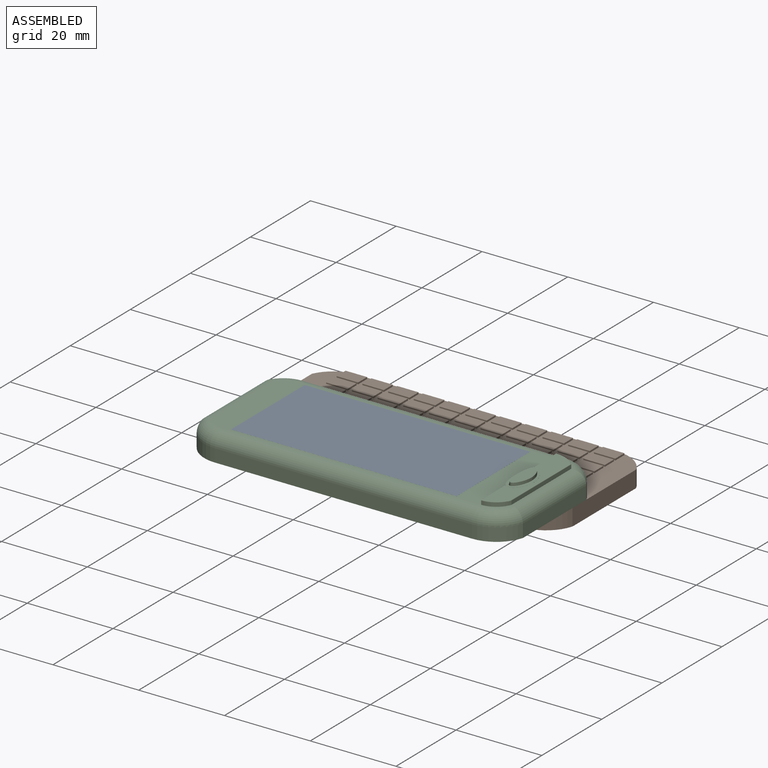
[diagram: assembled view]
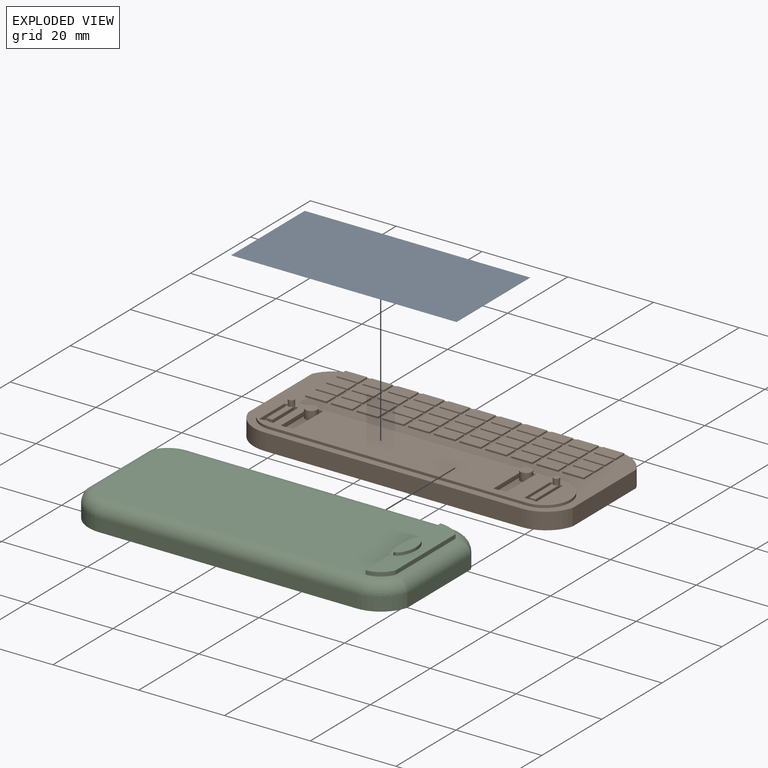
[diagram: exploded view]
GUIDED TOUR — MATED ASSEMBLY (Onshape document b497cf23d350c7b0526f8394, AutoMate assembly b497cf23d350c7b0526f8394_3c18b025ab61cdd5b52f8e9c_d01087976453ecdc4401d373_default)

This assembly has 3 components, labeled P0..P2 below (a component is one placed occurrence of a part; the same part can appear more than once), held together by 2 mates. A mate is a constraint between two components; its type names the relative motion it leaves free:
  FASTENED — locks the two components together rigidly (no relative motion),
  SLIDER — leaves translation along the listed axis free.
Axis/direction vectors are unit vectors and 'through' points are millimeter coordinates, both in the assembly's world frame.

MATES
  1. FASTENED "Fastened 1": P0 <-> P2, direction (0.000, 0.000, -1.000) through (47.79, 38.02, 13.63) mm
  2. SLIDER "Slider 1": P1 <-> P2, axis (0.000, -1.000, 0.000) through (78.46, 51.75, 7.63) mm

ASSEMBLY ORDER
  1. P1 — the base component [order verified]
  2. P2 [order verified]
  3. P0 [order verified]
Order-tag legend:
  [order verified] — this step's position reverses a verified removal order: the component was checked to insert without passing through the ones already placed.

Of the 3 components, 1 carries the full construction recipe — the FeatureScript program that regenerates the part's solid from scratch; the rest are supplied as boundary geometry only.
Each toured component is shown spotlighted twice — in the assembled view, then in the exploded view, where a leader line traces a displaced component back to its assembled socket (saturated green if recipe-attached, orange if geometry-only; every other component desaturated gray) — followed by its recipe or geometry summary and the mates that hold it.
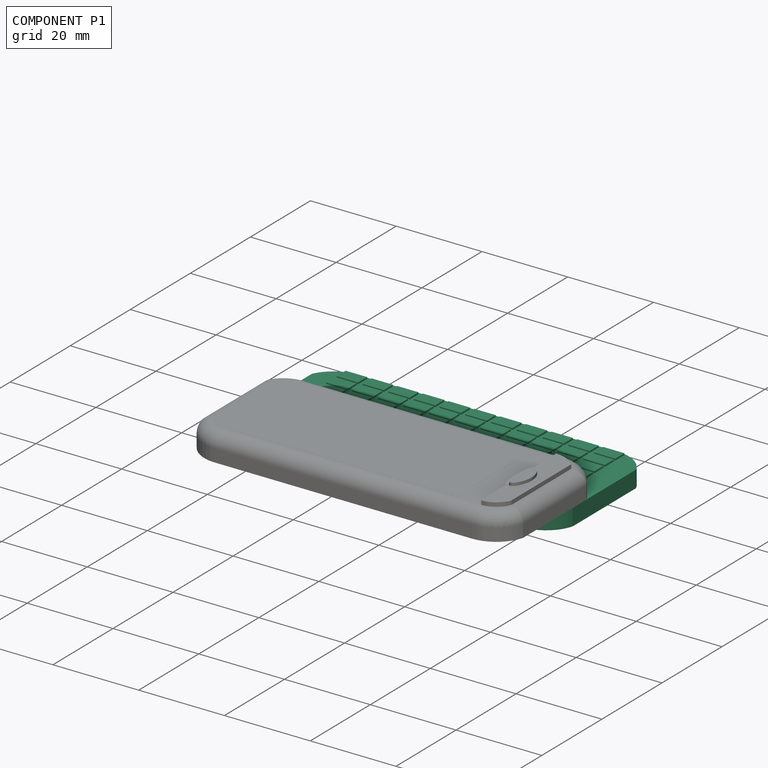
[diagram: component P1 — assembled]
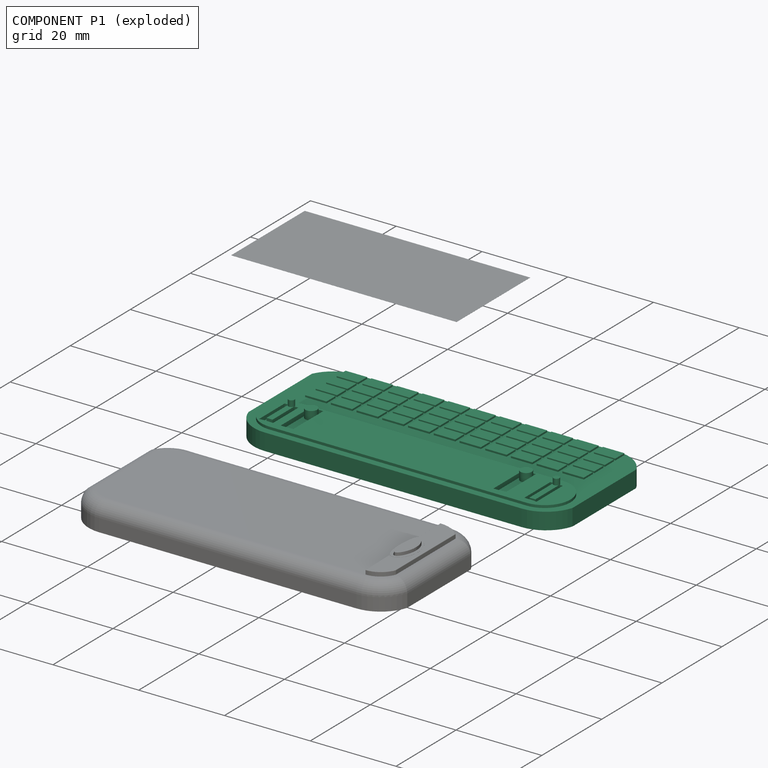
[diagram: component P1 — exploded]
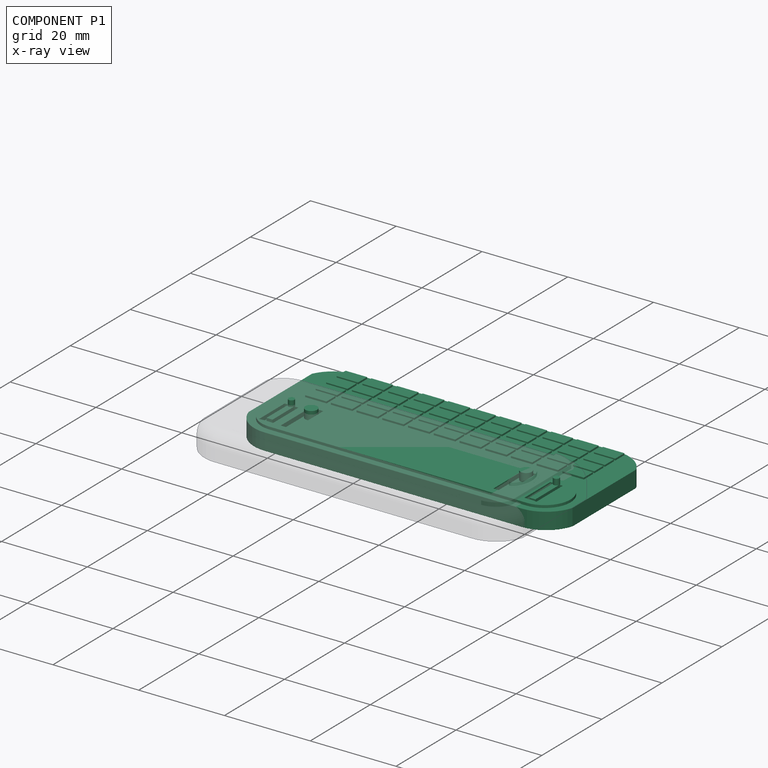
[diagram: component P1 — x-ray view]
COMPONENT P1 — recipe-attached (CADFS 00139531, mesh-verified: the recipe's output STEP matches this component's geometry to below the mesh-comparison resolution (tessellation chordal tolerance ~0.123 mm)).
Held by: SLIDER mate "Slider 1" to P2.
Construction recipe (FeatureScript — the CAD program that rebuilds this solid; sketch coordinates are in the units given by the * unit suffixes, e.g. mm):

FeatureScript 1540;
import(path : "onshape/std/geometry.fs", version : "1540.0");
import(path : "onshape/std/common.fs", version : "1540.0");
const mm = millimeter;
const VERTEX = EntityType.VERTEX;
const EDGE = EntityType.EDGE;
const FACE = EntityType.FACE;
const BODY = EntityType.BODY;
function v(x, y){return vector(x, y);}
function OD(order){return orderDisambiguation(order);}
function OSD(set){return originalSetDisambiguation(set);}
function TD(topology){return topologyDisambiguation(topology);}
function TDD(query){return trueDependencyDisambiguation(query);}
function sQuery(a, b, c) {return sketchEntityQuery(a, b, c);}

annotation { "Feature Type Name" : "Feature", "Feature Type Description" : "" }
export const myFeature = defineFeature(function(context is Context, id is Id, definition is map)
    precondition{}
    {
        {
            var Q0;
            Q0=qCreatedBy(makeId("Top.planeOp"),FACE);
            var sketch = newSketch(context, id + "F0", { "sketchPlane" : qUnion([Q0])});
            skLineSegment(sketch, "E0.bottom", {"start": v(-50.5, 31.94) * mm, "end": v(9.5, 31.94) * mm});
            skLineSegment(sketch, "E0.top", {"start": v(-49.93, 0.43) * mm, "end": v(10.07, 0.43) * mm});
            skArc(sketch, "E1", {"start": v(-50.5, 31.94) * mm, "mid": v(-55.35, 30.33) * mm, "end": v(-58.27, 26.14) * mm});
            skArc(sketch, "E2", {"start": v(-58.27, 5) * mm, "mid": v(-54.84, 1.37) * mm, "end": v(-49.93, 0.43) * mm});
            skLineSegment(sketch, "E3", {"start": v(-58.27, 26.14) * mm, "end": v(-58.27, 5) * mm});
            skArc(sketch, "E4.MirrorCS", {"start": v(9.5, 31.94) * mm, "mid": v(14.36, 30.33) * mm, "end": v(17.3, 26.14) * mm});
            skArc(sketch, "E5.MirrorCS", {"start": v(17.3, 5) * mm, "mid": v(13.86, 1.37) * mm, "end": v(8.95, 0.43) * mm});
            skLineSegment(sketch, "E6", {"start": v(17.3, 26.14) * mm, "end": v(17.3, 5) * mm});
            skSolve(sketch);
        }
        {
            var Q0;
            Q0 = qSketchRegion(id + "F0", true);
            var Q1;
            Q1 = qConstructionFilter(qBodyType(qCreatedBy(id + "F0" ,EDGE), BodyType.WIRE), ConstructionObject.NO);
            extrude(context, id + "F1", {"entities" : qUnion([Q0]), "surfaceEntities" : qUnion([Q1]), "depth" : 3.9 * mm});
        }
        {
            var Q0;
            Q0=makeQuery(id+"F1.opExtrude","CAP_FACE",FACE,{"disambiguationData":[OSD([sQuery(id+"F0.wireOp",EDGE,"E0.bottom"),sQuery(id+"F0.wireOp",EDGE,"E0.top"),sQuery(id+"F0.wireOp",EDGE,"E1"),sQuery(id+"F0.wireOp",EDGE,"E2"),sQuery(id+"F0.wireOp",EDGE,"E3"),sQuery(id+"F0.wireOp",EDGE,"E4.MirrorCS"),sQuery(id+"F0.wireOp",EDGE,"E5.MirrorCS"),sQuery(id+"F0.wireOp",EDGE,"E6")])],"isStart":false});
            var sketch = newSketch(context, id + "F2", { "sketchPlane" : qUnion([Q0])});
            skLineSegment(sketch, "E7.bottom", {"start": v(-47.67, 11.39) * mm, "end": v(-52.67, 11.39) * mm});
            skLineSegment(sketch, "E7.top", {"start": v(-47.67, 14.39) * mm, "end": v(-52.67, 14.39) * mm});
            skLineSegment(sketch, "E7.left", {"start": v(-47.67, 11.39) * mm, "end": v(-47.67, 14.39) * mm});
            skLineSegment(sketch, "E7.right", {"start": v(-52.67, 11.39) * mm, "end": v(-52.67, 14.39) * mm});
            skPoint(sketch, "E7.middle", {"position": v(-50.17, 12.89) * mm});
            skLineSegment(sketch, "E8.0.1.0", {"start": v(-47.67, 10.89) * mm, "end": v(-52.67, 10.89) * mm});
            skLineSegment(sketch, "E8.0.1.1", {"start": v(-52.67, 7.89) * mm, "end": v(-52.67, 10.89) * mm});
            skLineSegment(sketch, "E8.0.1.2", {"start": v(-47.67, 7.89) * mm, "end": v(-52.67, 7.89) * mm});
            skLineSegment(sketch, "E8.0.1.3", {"start": v(-47.67, 7.89) * mm, "end": v(-47.67, 10.89) * mm});
            skLineSegment(sketch, "E8.0.2.0", {"start": v(-47.67, 7.39) * mm, "end": v(-52.67, 7.39) * mm});
            skLineSegment(sketch, "E8.0.2.1", {"start": v(-52.67, 4.39) * mm, "end": v(-52.67, 7.39) * mm});
            skLineSegment(sketch, "E8.0.2.2", {"start": v(-47.67, 4.39) * mm, "end": v(-52.67, 4.39) * mm});
            skLineSegment(sketch, "E8.0.2.3", {"start": v(-47.67, 4.39) * mm, "end": v(-47.67, 7.39) * mm});
            skLineSegment(sketch, "E8.0.3.0", {"start": v(-47.67, 3.89) * mm, "end": v(-52.67, 3.89) * mm});
            skLineSegment(sketch, "E8.0.3.1", {"start": v(-52.67, 0.89) * mm, "end": v(-52.67, 3.89) * mm});
            skLineSegment(sketch, "E8.0.3.2", {"start": v(-47.67, 0.89) * mm, "end": v(-52.67, 0.89) * mm});
            skLineSegment(sketch, "E8.0.3.3", {"start": v(-47.67, 0.89) * mm, "end": v(-47.67, 3.89) * mm});
            skLineSegment(sketch, "E8.1.0.0", {"start": v(-41.67, 14.39) * mm, "end": v(-46.67, 14.39) * mm});
            skLineSegment(sketch, "E8.1.0.1", {"start": v(-46.67, 11.39) * mm, "end": v(-46.67, 14.39) * mm});
            skLineSegment(sketch, "E8.1.0.2", {"start": v(-41.67, 11.39) * mm, "end": v(-46.67, 11.39) * mm});
            skLineSegment(sketch, "E8.1.0.3", {"start": v(-41.67, 11.39) * mm, "end": v(-41.67, 14.39) * mm});
            skLineSegment(sketch, "E8.1.1.0", {"start": v(-41.67, 10.89) * mm, "end": v(-46.67, 10.89) * mm});
            skLineSegment(sketch, "E8.1.1.1", {"start": v(-46.67, 7.89) * mm, "end": v(-46.67, 10.89) * mm});
            skLineSegment(sketch, "E8.1.1.2", {"start": v(-41.67, 7.89) * mm, "end": v(-46.67, 7.89) * mm});
            skLineSegment(sketch, "E8.1.1.3", {"start": v(-41.67, 7.89) * mm, "end": v(-41.67, 10.89) * mm});
            skLineSegment(sketch, "E8.1.2.0", {"start": v(-41.67, 7.39) * mm, "end": v(-46.67, 7.39) * mm});
            skLineSegment(sketch, "E8.1.2.1", {"start": v(-46.67, 4.39) * mm, "end": v(-46.67, 7.39) * mm});
            skLineSegment(sketch, "E8.1.2.2", {"start": v(-41.67, 4.39) * mm, "end": v(-46.67, 4.39) * mm});
            skLineSegment(sketch, "E8.1.2.3", {"start": v(-41.67, 4.39) * mm, "end": v(-41.67, 7.39) * mm});
            skLineSegment(sketch, "E8.1.3.0", {"start": v(-41.67, 3.89) * mm, "end": v(-46.67, 3.89) * mm});
            skLineSegment(sketch, "E8.1.3.1", {"start": v(-46.67, 0.89) * mm, "end": v(-46.67, 3.89) * mm});
            skLineSegment(sketch, "E8.1.3.2", {"start": v(-41.67, 0.89) * mm, "end": v(-46.67, 0.89) * mm});
            skLineSegment(sketch, "E8.1.3.3", {"start": v(-41.67, 0.89) * mm, "end": v(-41.67, 3.89) * mm});
            skLineSegment(sketch, "E8.2.0.0", {"start": v(-35.67, 14.39) * mm, "end": v(-40.67, 14.39) * mm});
            skLineSegment(sketch, "E8.2.0.1", {"start": v(-40.67, 11.39) * mm, "end": v(-40.67, 14.39) * mm});
            skLineSegment(sketch, "E8.2.0.2", {"start": v(-35.67, 11.39) * mm, "end": v(-40.67, 11.39) * mm});
            skLineSegment(sketch, "E8.2.0.3", {"start": v(-35.67, 11.39) * mm, "end": v(-35.67, 14.39) * mm});
            skLineSegment(sketch, "E8.2.1.0", {"start": v(-35.67, 10.89) * mm, "end": v(-40.67, 10.89) * mm});
            skLineSegment(sketch, "E8.2.1.1", {"start": v(-40.67, 7.89) * mm, "end": v(-40.67, 10.89) * mm});
            skLineSegment(sketch, "E8.2.1.2", {"start": v(-35.67, 7.89) * mm, "end": v(-40.67, 7.89) * mm});
            skLineSegment(sketch, "E8.2.1.3", {"start": v(-35.67, 7.89) * mm, "end": v(-35.67, 10.89) * mm});
            skLineSegment(sketch, "E8.2.2.0", {"start": v(-35.67, 7.39) * mm, "end": v(-40.67, 7.39) * mm});
            skLineSegment(sketch, "E8.2.2.1", {"start": v(-40.67, 4.39) * mm, "end": v(-40.67, 7.39) * mm});
            skLineSegment(sketch, "E8.2.2.2", {"start": v(-35.67, 4.39) * mm, "end": v(-40.67, 4.39) * mm});
            skLineSegment(sketch, "E8.2.2.3", {"start": v(-35.67, 4.39) * mm, "end": v(-35.67, 7.39) * mm});
            skLineSegment(sketch, "E8.2.3.0", {"start": v(-35.67, 3.89) * mm, "end": v(-40.67, 3.89) * mm});
            skLineSegment(sketch, "E8.2.3.1", {"start": v(-40.67, 0.89) * mm, "end": v(-40.67, 3.89) * mm});
            skLineSegment(sketch, "E8.2.3.2", {"start": v(-35.67, 0.89) * mm, "end": v(-40.67, 0.89) * mm});
            skLineSegment(sketch, "E8.2.3.3", {"start": v(-35.67, 0.89) * mm, "end": v(-35.67, 3.89) * mm});
            skLineSegment(sketch, "E8.3.0.0", {"start": v(-29.67, 14.39) * mm, "end": v(-34.67, 14.39) * mm});
            skLineSegment(sketch, "E8.3.0.1", {"start": v(-34.67, 11.39) * mm, "end": v(-34.67, 14.39) * mm});
            skLineSegment(sketch, "E8.3.0.2", {"start": v(-29.67, 11.39) * mm, "end": v(-34.67, 11.39) * mm});
            skLineSegment(sketch, "E8.3.0.3", {"start": v(-29.67, 11.39) * mm, "end": v(-29.67, 14.39) * mm});
            skLineSegment(sketch, "E8.3.1.0", {"start": v(-29.67, 10.89) * mm, "end": v(-34.67, 10.89) * mm});
            skLineSegment(sketch, "E8.3.1.1", {"start": v(-34.67, 7.89) * mm, "end": v(-34.67, 10.89) * mm});
            skLineSegment(sketch, "E8.3.1.2", {"start": v(-29.67, 7.89) * mm, "end": v(-34.67, 7.89) * mm});
            skLineSegment(sketch, "E8.3.1.3", {"start": v(-29.67, 7.89) * mm, "end": v(-29.67, 10.89) * mm});
            skLineSegment(sketch, "E8.3.2.0", {"start": v(-29.67, 7.39) * mm, "end": v(-34.67, 7.39) * mm});
            skLineSegment(sketch, "E8.3.2.1", {"start": v(-34.67, 4.39) * mm, "end": v(-34.67, 7.39) * mm});
            skLineSegment(sketch, "E8.3.2.2", {"start": v(-29.67, 4.39) * mm, "end": v(-34.67, 4.39) * mm});
            skLineSegment(sketch, "E8.3.2.3", {"start": v(-29.67, 4.39) * mm, "end": v(-29.67, 7.39) * mm});
            skLineSegment(sketch, "E8.3.3.0", {"start": v(-29.67, 3.89) * mm, "end": v(-34.67, 3.89) * mm});
            skLineSegment(sketch, "E8.3.3.1", {"start": v(-34.67, 0.89) * mm, "end": v(-34.67, 3.89) * mm});
            skLineSegment(sketch, "E8.3.3.2", {"start": v(-29.67, 0.89) * mm, "end": v(-34.67, 0.89) * mm});
            skLineSegment(sketch, "E8.3.3.3", {"start": v(-29.67, 0.89) * mm, "end": v(-29.67, 3.89) * mm});
            skLineSegment(sketch, "E8.4.0.0", {"start": v(-23.67, 14.39) * mm, "end": v(-28.67, 14.39) * mm});
            skLineSegment(sketch, "E8.4.0.1", {"start": v(-28.67, 11.39) * mm, "end": v(-28.67, 14.39) * mm});
            skLineSegment(sketch, "E8.4.0.2", {"start": v(-23.67, 11.39) * mm, "end": v(-28.67, 11.39) * mm});
            skLineSegment(sketch, "E8.4.0.3", {"start": v(-23.67, 11.39) * mm, "end": v(-23.67, 14.39) * mm});
            skLineSegment(sketch, "E8.4.1.0", {"start": v(-23.67, 10.89) * mm, "end": v(-28.67, 10.89) * mm});
            skLineSegment(sketch, "E8.4.1.1", {"start": v(-28.67, 7.89) * mm, "end": v(-28.67, 10.89) * mm});
            skLineSegment(sketch, "E8.4.1.2", {"start": v(-23.67, 7.89) * mm, "end": v(-28.67, 7.89) * mm});
            skLineSegment(sketch, "E8.4.1.3", {"start": v(-23.67, 7.89) * mm, "end": v(-23.67, 10.89) * mm});
            skLineSegment(sketch, "E8.4.2.0", {"start": v(-23.67, 7.39) * mm, "end": v(-28.67, 7.39) * mm});
            skLineSegment(sketch, "E8.4.2.1", {"start": v(-28.67, 4.39) * mm, "end": v(-28.67, 7.39) * mm});
            skLineSegment(sketch, "E8.4.2.2", {"start": v(-23.67, 4.39) * mm, "end": v(-28.67, 4.39) * mm});
            skLineSegment(sketch, "E8.4.2.3", {"start": v(-23.67, 4.39) * mm, "end": v(-23.67, 7.39) * mm});
            skLineSegment(sketch, "E8.4.3.0", {"start": v(-23.67, 3.89) * mm, "end": v(-28.67, 3.89) * mm});
            skLineSegment(sketch, "E8.4.3.1", {"start": v(-28.67, 0.89) * mm, "end": v(-28.67, 3.89) * mm});
            skLineSegment(sketch, "E8.4.3.2", {"start": v(-23.67, 0.89) * mm, "end": v(-28.67, 0.89) * mm});
            skLineSegment(sketch, "E8.4.3.3", {"start": v(-23.67, 0.89) * mm, "end": v(-23.67, 3.89) * mm});
            skLineSegment(sketch, "E8.5.0.0", {"start": v(-17.67, 14.39) * mm, "end": v(-22.67, 14.39) * mm});
            skLineSegment(sketch, "E8.5.0.1", {"start": v(-22.67, 11.39) * mm, "end": v(-22.67, 14.39) * mm});
            skLineSegment(sketch, "E8.5.0.2", {"start": v(-17.67, 11.39) * mm, "end": v(-22.67, 11.39) * mm});
            skLineSegment(sketch, "E8.5.0.3", {"start": v(-17.67, 11.39) * mm, "end": v(-17.67, 14.39) * mm});
            skLineSegment(sketch, "E8.5.1.0", {"start": v(-17.67, 10.89) * mm, "end": v(-22.67, 10.89) * mm});
            skLineSegment(sketch, "E8.5.1.1", {"start": v(-22.67, 7.89) * mm, "end": v(-22.67, 10.89) * mm});
            skLineSegment(sketch, "E8.5.1.2", {"start": v(-17.67, 7.89) * mm, "end": v(-22.67, 7.89) * mm});
            skLineSegment(sketch, "E8.5.1.3", {"start": v(-17.67, 7.89) * mm, "end": v(-17.67, 10.89) * mm});
            skLineSegment(sketch, "E8.5.2.0", {"start": v(-17.67, 7.39) * mm, "end": v(-22.67, 7.39) * mm});
            skLineSegment(sketch, "E8.5.2.1", {"start": v(-22.67, 4.39) * mm, "end": v(-22.67, 7.39) * mm});
            skLineSegment(sketch, "E8.5.2.2", {"start": v(-17.67, 4.39) * mm, "end": v(-22.67, 4.39) * mm});
            skLineSegment(sketch, "E8.5.2.3", {"start": v(-17.67, 4.39) * mm, "end": v(-17.67, 7.39) * mm});
            skLineSegment(sketch, "E8.5.3.0", {"start": v(-17.67, 3.89) * mm, "end": v(-22.67, 3.89) * mm});
            skLineSegment(sketch, "E8.5.3.1", {"start": v(-22.67, 0.89) * mm, "end": v(-22.67, 3.89) * mm});
            skLineSegment(sketch, "E8.5.3.2", {"start": v(-17.67, 0.89) * mm, "end": v(-22.67, 0.89) * mm});
            skLineSegment(sketch, "E8.5.3.3", {"start": v(-17.67, 0.89) * mm, "end": v(-17.67, 3.89) * mm});
            skLineSegment(sketch, "E8.6.0.0", {"start": v(-11.67, 14.39) * mm, "end": v(-16.67, 14.39) * mm});
            skLineSegment(sketch, "E8.6.0.1", {"start": v(-16.67, 11.39) * mm, "end": v(-16.67, 14.39) * mm});
            skLineSegment(sketch, "E8.6.0.2", {"start": v(-11.67, 11.39) * mm, "end": v(-16.67, 11.39) * mm});
            skLineSegment(sketch, "E8.6.0.3", {"start": v(-11.67, 11.39) * mm, "end": v(-11.67, 14.39) * mm});
            skLineSegment(sketch, "E8.6.1.0", {"start": v(-11.67, 10.89) * mm, "end": v(-16.67, 10.89) * mm});
            skLineSegment(sketch, "E8.6.1.1", {"start": v(-16.67, 7.89) * mm, "end": v(-16.67, 10.89) * mm});
            skLineSegment(sketch, "E8.6.1.2", {"start": v(-11.67, 7.89) * mm, "end": v(-16.67, 7.89) * mm});
            skLineSegment(sketch, "E8.6.1.3", {"start": v(-11.67, 7.89) * mm, "end": v(-11.67, 10.89) * mm});
            skLineSegment(sketch, "E8.6.2.0", {"start": v(-11.67, 7.39) * mm, "end": v(-16.67, 7.39) * mm});
            skLineSegment(sketch, "E8.6.2.1", {"start": v(-16.67, 4.39) * mm, "end": v(-16.67, 7.39) * mm});
            skLineSegment(sketch, "E8.6.2.2", {"start": v(-11.67, 4.39) * mm, "end": v(-16.67, 4.39) * mm});
            skLineSegment(sketch, "E8.6.2.3", {"start": v(-11.67, 4.39) * mm, "end": v(-11.67, 7.39) * mm});
            skLineSegment(sketch, "E8.6.3.0", {"start": v(-11.67, 3.89) * mm, "end": v(-16.67, 3.89) * mm});
            skLineSegment(sketch, "E8.6.3.1", {"start": v(-16.67, 0.89) * mm, "end": v(-16.67, 3.89) * mm});
            skLineSegment(sketch, "E8.6.3.2", {"start": v(-11.67, 0.89) * mm, "end": v(-16.67, 0.89) * mm});
            skLineSegment(sketch, "E8.6.3.3", {"start": v(-11.67, 0.89) * mm, "end": v(-11.67, 3.89) * mm});
            skLineSegment(sketch, "E8.7.0.0", {"start": v(-5.67, 14.39) * mm, "end": v(-10.67, 14.39) * mm});
            skLineSegment(sketch, "E8.7.0.1", {"start": v(-10.67, 11.39) * mm, "end": v(-10.67, 14.39) * mm});
            skLineSegment(sketch, "E8.7.0.2", {"start": v(-5.67, 11.39) * mm, "end": v(-10.67, 11.39) * mm});
            skLineSegment(sketch, "E8.7.0.3", {"start": v(-5.67, 11.39) * mm, "end": v(-5.67, 14.39) * mm});
            skLineSegment(sketch, "E8.7.1.0", {"start": v(-5.67, 10.89) * mm, "end": v(-10.67, 10.89) * mm});
            skLineSegment(sketch, "E8.7.1.1", {"start": v(-10.67, 7.89) * mm, "end": v(-10.67, 10.89) * mm});
            skLineSegment(sketch, "E8.7.1.2", {"start": v(-5.67, 7.89) * mm, "end": v(-10.67, 7.89) * mm});
            skLineSegment(sketch, "E8.7.1.3", {"start": v(-5.67, 7.89) * mm, "end": v(-5.67, 10.89) * mm});
            skLineSegment(sketch, "E8.7.2.0", {"start": v(-5.67, 7.39) * mm, "end": v(-10.67, 7.39) * mm});
            skLineSegment(sketch, "E8.7.2.1", {"start": v(-10.67, 4.39) * mm, "end": v(-10.67, 7.39) * mm});
            skLineSegment(sketch, "E8.7.2.2", {"start": v(-5.67, 4.39) * mm, "end": v(-10.67, 4.39) * mm});
            skLineSegment(sketch, "E8.7.2.3", {"start": v(-5.67, 4.39) * mm, "end": v(-5.67, 7.39) * mm});
            skLineSegment(sketch, "E8.7.3.0", {"start": v(-5.67, 3.89) * mm, "end": v(-10.67, 3.89) * mm});
            skLineSegment(sketch, "E8.7.3.1", {"start": v(-10.67, 0.89) * mm, "end": v(-10.67, 3.89) * mm});
            skLineSegment(sketch, "E8.7.3.2", {"start": v(-5.67, 0.89) * mm, "end": v(-10.67, 0.89) * mm});
            skLineSegment(sketch, "E8.7.3.3", {"start": v(-5.67, 0.89) * mm, "end": v(-5.67, 3.89) * mm});
            skLineSegment(sketch, "E8.8.0.0", {"start": v(0.33, 14.39) * mm, "end": v(-4.67, 14.39) * mm});
            skLineSegment(sketch, "E8.8.0.1", {"start": v(-4.67, 11.39) * mm, "end": v(-4.67, 14.39) * mm});
            skLineSegment(sketch, "E8.8.0.2", {"start": v(0.33, 11.39) * mm, "end": v(-4.67, 11.39) * mm});
            skLineSegment(sketch, "E8.8.0.3", {"start": v(0.33, 11.39) * mm, "end": v(0.33, 14.39) * mm});
            skLineSegment(sketch, "E8.8.1.0", {"start": v(0.33, 10.89) * mm, "end": v(-4.67, 10.89) * mm});
            skLineSegment(sketch, "E8.8.1.1", {"start": v(-4.67, 7.89) * mm, "end": v(-4.67, 10.89) * mm});
            skLineSegment(sketch, "E8.8.1.2", {"start": v(0.33, 7.89) * mm, "end": v(-4.67, 7.89) * mm});
            skLineSegment(sketch, "E8.8.1.3", {"start": v(0.33, 7.89) * mm, "end": v(0.33, 10.89) * mm});
            skLineSegment(sketch, "E8.8.2.0", {"start": v(0.33, 7.39) * mm, "end": v(-4.67, 7.39) * mm});
            skLineSegment(sketch, "E8.8.2.1", {"start": v(-4.67, 4.39) * mm, "end": v(-4.67, 7.39) * mm});
            skLineSegment(sketch, "E8.8.2.2", {"start": v(0.33, 4.39) * mm, "end": v(-4.67, 4.39) * mm});
            skLineSegment(sketch, "E8.8.2.3", {"start": v(0.33, 4.39) * mm, "end": v(0.33, 7.39) * mm});
            skLineSegment(sketch, "E8.8.3.0", {"start": v(0.33, 3.89) * mm, "end": v(-4.67, 3.89) * mm});
            skLineSegment(sketch, "E8.8.3.1", {"start": v(-4.67, 0.89) * mm, "end": v(-4.67, 3.89) * mm});
            skLineSegment(sketch, "E8.8.3.2", {"start": v(0.33, 0.89) * mm, "end": v(-4.67, 0.89) * mm});
            skLineSegment(sketch, "E8.8.3.3", {"start": v(0.33, 0.89) * mm, "end": v(0.33, 3.89) * mm});
            skLineSegment(sketch, "E8.9.0.0", {"start": v(6.33, 14.39) * mm, "end": v(1.33, 14.39) * mm});
            skLineSegment(sketch, "E8.9.0.1", {"start": v(1.33, 11.39) * mm, "end": v(1.33, 14.39) * mm});
            skLineSegment(sketch, "E8.9.0.2", {"start": v(6.33, 11.39) * mm, "end": v(1.33, 11.39) * mm});
            skLineSegment(sketch, "E8.9.0.3", {"start": v(6.33, 11.39) * mm, "end": v(6.33, 14.39) * mm});
            skLineSegment(sketch, "E8.9.1.0", {"start": v(6.33, 10.89) * mm, "end": v(1.33, 10.89) * mm});
            skLineSegment(sketch, "E8.9.1.1", {"start": v(1.33, 7.89) * mm, "end": v(1.33, 10.89) * mm});
            skLineSegment(sketch, "E8.9.1.2", {"start": v(6.33, 7.89) * mm, "end": v(1.33, 7.89) * mm});
            skLineSegment(sketch, "E8.9.1.3", {"start": v(6.33, 7.89) * mm, "end": v(6.33, 10.89) * mm});
            skLineSegment(sketch, "E8.9.2.0", {"start": v(6.33, 7.39) * mm, "end": v(1.33, 7.39) * mm});
            skLineSegment(sketch, "E8.9.2.1", {"start": v(1.33, 4.39) * mm, "end": v(1.33, 7.39) * mm});
            skLineSegment(sketch, "E8.9.2.2", {"start": v(6.33, 4.39) * mm, "end": v(1.33, 4.39) * mm});
            skLineSegment(sketch, "E8.9.2.3", {"start": v(6.33, 4.39) * mm, "end": v(6.33, 7.39) * mm});
            skLineSegment(sketch, "E8.9.3.0", {"start": v(6.33, 3.89) * mm, "end": v(1.33, 3.89) * mm});
            skLineSegment(sketch, "E8.9.3.1", {"start": v(1.33, 0.89) * mm, "end": v(1.33, 3.89) * mm});
            skLineSegment(sketch, "E8.9.3.2", {"start": v(6.33, 0.89) * mm, "end": v(1.33, 0.89) * mm});
            skLineSegment(sketch, "E8.9.3.3", {"start": v(6.33, 0.89) * mm, "end": v(6.33, 3.89) * mm});
            skLineSegment(sketch, "E8.10.0.0", {"start": v(12.33, 14.39) * mm, "end": v(7.33, 14.39) * mm});
            skLineSegment(sketch, "E8.10.0.1", {"start": v(7.33, 11.39) * mm, "end": v(7.33, 14.39) * mm});
            skLineSegment(sketch, "E8.10.0.2", {"start": v(12.33, 11.39) * mm, "end": v(7.33, 11.39) * mm});
            skLineSegment(sketch, "E8.10.0.3", {"start": v(12.33, 11.39) * mm, "end": v(12.33, 14.39) * mm});
            skLineSegment(sketch, "E8.10.1.0", {"start": v(12.33, 10.89) * mm, "end": v(7.33, 10.89) * mm});
            skLineSegment(sketch, "E8.10.1.1", {"start": v(7.33, 7.89) * mm, "end": v(7.33, 10.89) * mm});
            skLineSegment(sketch, "E8.10.1.2", {"start": v(12.33, 7.89) * mm, "end": v(7.33, 7.89) * mm});
            skLineSegment(sketch, "E8.10.1.3", {"start": v(12.33, 7.89) * mm, "end": v(12.33, 10.89) * mm});
            skLineSegment(sketch, "E8.10.2.0", {"start": v(12.33, 7.39) * mm, "end": v(7.33, 7.39) * mm});
            skLineSegment(sketch, "E8.10.2.1", {"start": v(7.33, 4.39) * mm, "end": v(7.33, 7.39) * mm});
            skLineSegment(sketch, "E8.10.2.2", {"start": v(12.33, 4.39) * mm, "end": v(7.33, 4.39) * mm});
            skLineSegment(sketch, "E8.10.2.3", {"start": v(12.33, 4.39) * mm, "end": v(12.33, 7.39) * mm});
            skLineSegment(sketch, "E8.10.3.0", {"start": v(12.33, 3.89) * mm, "end": v(7.33, 3.89) * mm});
            skLineSegment(sketch, "E8.10.3.1", {"start": v(7.33, 0.89) * mm, "end": v(7.33, 3.89) * mm});
            skLineSegment(sketch, "E8.10.3.2", {"start": v(12.33, 0.89) * mm, "end": v(7.33, 0.89) * mm});
            skLineSegment(sketch, "E8.10.3.3", {"start": v(12.33, 0.89) * mm, "end": v(12.33, 3.89) * mm});
            skLineSegment(sketch, "E8.direction1", {"start": v(-52.67, 14.39) * mm, "end": v(-46.67, 14.39) * mm, "construction": true});
            skLineSegment(sketch, "E8.direction2", {"start": v(-52.67, 14.39) * mm, "end": v(-52.67, 10.89) * mm, "construction": true});
            skSolve(sketch);
        }
        {
            var Q0;
            Q0 = qSketchRegion(id + "F2", true);
            extrude(context, id + "F3", {"entities" : qUnion([Q0]), "operationType" : NewBodyOperationType.ADD, "depth" : 0.4 * mm});
        }
        {
            var Q0;
            Q0=makeQuery(id+"F1.opExtrude","CAP_FACE",FACE,{"disambiguationData":[OSD([sQuery(id+"F0.wireOp",EDGE,"E0.bottom"),sQuery(id+"F0.wireOp",EDGE,"E0.top"),sQuery(id+"F0.wireOp",EDGE,"E1"),sQuery(id+"F0.wireOp",EDGE,"E2"),sQuery(id+"F0.wireOp",EDGE,"E3"),sQuery(id+"F0.wireOp",EDGE,"E4.MirrorCS"),sQuery(id+"F0.wireOp",EDGE,"E5.MirrorCS"),sQuery(id+"F0.wireOp",EDGE,"E6")])],"isStart":false});
            var sketch = newSketch(context, id + "F4", { "sketchPlane" : qUnion([Q0])});
            skLineSegment(sketch, "E9", {"start": v(-50.5, 30.31) * mm, "end": v(9.5, 30.31) * mm});
            skLineSegment(sketch, "E10", {"start": v(-50.5, 18.28) * mm, "end": v(9.5, 18.28) * mm});
            skArc(sketch, "E11", {"start": v(-50.5, 30.31) * mm, "mid": v(-56.5, 24.3) * mm, "end": v(-50.5, 18.28) * mm});
            skArc(sketch, "E12", {"start": v(9.5, 18.28) * mm, "mid": v(15.53, 24.3) * mm, "end": v(9.5, 30.31) * mm});
            skSolve(sketch);
        }
        {
            var Q0;
            Q0=makeQuery(id+"F4.imprint","IMPRINT",FACE,{"disambiguationData":[TD([[makeQuery(id+"F4.imprint","IMPRINT",EDGE,{"derivedFrom":sQuery(id+"F4.wireOp",EDGE,"E9")}),-1.0]])]});
            extrude(context, id + "F5", {"entities" : qUnion([Q0]), "operationType" : NewBodyOperationType.ADD, "depth" : 0.6 * mm});
        }
        {
            var Q0;
            Q0=makeQuery(id+"F1.opExtrude","CAP_FACE",FACE,{"disambiguationData":[OSD([sQuery(id+"F0.wireOp",EDGE,"E0.bottom"),sQuery(id+"F0.wireOp",EDGE,"E0.top"),sQuery(id+"F0.wireOp",EDGE,"E1"),sQuery(id+"F0.wireOp",EDGE,"E2"),sQuery(id+"F0.wireOp",EDGE,"E3"),sQuery(id+"F0.wireOp",EDGE,"E4.MirrorCS"),sQuery(id+"F0.wireOp",EDGE,"E5.MirrorCS"),sQuery(id+"F0.wireOp",EDGE,"E6")])],"isStart":false});
            var sketch = newSketch(context, id + "F6", { "sketchPlane" : qUnion([Q0])});
            skCircle(sketch, "E13", {"center": v(-50.27, 20.08) * mm, "radius": 0.7 * mm});
            skCircle(sketch, "E14", {"center": v(11.52, 20.08) * mm, "radius": 0.7 * mm});
            skSolve(sketch);
        }
        {
            var Q0;
            Q0 = qSketchRegion(id + "F6", true);
            extrude(context, id + "F7", {"entities" : qUnion([Q0]), "operationType" : NewBodyOperationType.ADD, "depth" : 2 * mm});
        }
        {
            var Q0;
            Q0=makeQuery(id+"F5.opExtrude","CAP_FACE",FACE,{"disambiguationData":[OSD([sQuery(id+"F4.wireOp",EDGE,"E9"),sQuery(id+"F4.wireOp",EDGE,"E10"),sQuery(id+"F4.wireOp",EDGE,"E11"),sQuery(id+"F4.wireOp",EDGE,"E12")])],"isStart":false});
            var sketch = newSketch(context, id + "F8", { "sketchPlane" : qUnion([Q0])});
            skLineSegment(sketch, "E15", {"start": v(-44.5, 28.59) * mm, "end": v(-44.5, 18.7) * mm});
            skLineSegment(sketch, "E16", {"start": v(-44.5, 18.7) * mm, "end": v(-41.58, 18.7) * mm});
            skLineSegment(sketch, "E17", {"start": v(-41.58, 18.7) * mm, "end": v(-41.58, 28.7) * mm});
            skLineSegment(sketch, "E18", {"start": v(-41.58, 28.7) * mm, "end": v(-44.5, 28.59) * mm});
            skSolve(sketch);
        }
        {
            var Q0;
            Q0=makeQuery(id+"F8.imprint","IMPRINT",FACE,{"disambiguationData":[TD([[makeQuery(id+"F8.imprint","IMPRINT",EDGE,{"derivedFrom":sQuery(id+"F8.wireOp",EDGE,"E15")}),1.0]])]});
            extrude(context, id + "F9", {"entities" : qUnion([Q0]), "operationType" : NewBodyOperationType.REMOVE, "oppositeDirection" : true, "depth" : 1 * mm});
        }
        {
            var Q0;
            Q0=makeQuery(id+"F5.opExtrude","CAP_FACE",FACE,{"disambiguationData":[OSD([sQuery(id+"F4.wireOp",EDGE,"E9"),sQuery(id+"F4.wireOp",EDGE,"E10"),sQuery(id+"F4.wireOp",EDGE,"E11"),sQuery(id+"F4.wireOp",EDGE,"E12")])],"isStart":false});
            var sketch = newSketch(context, id + "F10", { "sketchPlane" : qUnion([Q0])});
            skLineSegment(sketch, "E19", {"start": v(8.03, 28.66) * mm, "end": v(8.03, 18.66) * mm});
            skLineSegment(sketch, "E20", {"start": v(8.03, 18.66) * mm, "end": v(5.1, 18.66) * mm});
            skLineSegment(sketch, "E21", {"start": v(5.1, 18.66) * mm, "end": v(5.1, 28.66) * mm});
            skLineSegment(sketch, "E22", {"start": v(5.1, 28.66) * mm, "end": v(8.03, 28.66) * mm});
            skSolve(sketch);
        }
        {
            var Q0;
            Q0=makeQuery(id+"F10.imprint","IMPRINT",FACE,{"disambiguationData":[TD([[makeQuery(id+"F10.imprint","IMPRINT",EDGE,{"derivedFrom":sQuery(id+"F10.wireOp",EDGE,"E19")}),-1.0]])]});
            extrude(context, id + "F11", {"entities" : qUnion([Q0]), "operationType" : NewBodyOperationType.REMOVE, "oppositeDirection" : true, "depth" : 1 * mm});
        }
        {
            var Q0;
            Q0=makeQuery(id+"F9.boolean.opBoolean","COPY",FACE,{"derivedFrom":makeQuery(id+"F9.opExtrude","CAP_FACE",FACE,{"disambiguationData":[OSD([sQuery(id+"F8.wireOp",EDGE,"E15"),sQuery(id+"F8.wireOp",EDGE,"E16"),sQuery(id+"F8.wireOp",EDGE,"E17"),sQuery(id+"F8.wireOp",EDGE,"E18")])],"isStart":false})});
            var sketch = newSketch(context, id + "F12", { "sketchPlane" : qUnion([Q0])});
            skCircle(sketch, "E23", {"center": v(-43.18, 20.05) * mm, "radius": 1.33 * mm});
            skSolve(sketch);
        }
        {
            var Q0;
            Q0 = qSketchRegion(id + "F12", true);
            extrude(context, id + "F13", {"entities" : qUnion([Q0]), "operationType" : NewBodyOperationType.ADD, "depth" : 2 * mm});
        }
        {
            var Q0;
            Q0=makeQuery(id+"F11.boolean.opBoolean","COPY",FACE,{"derivedFrom":makeQuery(id+"F11.opExtrude","CAP_FACE",FACE,{"disambiguationData":[OSD([sQuery(id+"F10.wireOp",EDGE,"E19"),sQuery(id+"F10.wireOp",EDGE,"E20"),sQuery(id+"F10.wireOp",EDGE,"E21"),sQuery(id+"F10.wireOp",EDGE,"E22")])],"isStart":false})});
            var sketch = newSketch(context, id + "F14", { "sketchPlane" : qUnion([Q0])});
            skCircle(sketch, "E24", {"center": v(6.57, 20.6) * mm, "radius": 1.38 * mm});
            skPoint(sketch, "E24.centerSnap0", {"position": v(6.57, 18.66) * mm});
            skSolve(sketch);
        }
        {
            var Q0;
            Q0 = qSketchRegion(id + "F14", true);
            extrude(context, id + "F15", {"entities" : qUnion([Q0]), "operationType" : NewBodyOperationType.ADD, "depth" : 2 * mm});
        }
        {
            var Q0;
            Q0=makeQuery(id+"F5.opExtrude","CAP_FACE",FACE,{"disambiguationData":[OSD([sQuery(id+"F4.wireOp",EDGE,"E9"),sQuery(id+"F4.wireOp",EDGE,"E10"),sQuery(id+"F4.wireOp",EDGE,"E11"),sQuery(id+"F4.wireOp",EDGE,"E12")])],"isStart":false});
            var sketch = newSketch(context, id + "F16", { "sketchPlane" : qUnion([Q0])});
            skLineSegment(sketch, "E25", {"start": v(-49.57, 20.05) * mm, "end": v(-49.57, 28.71) * mm});
            skLineSegment(sketch, "E26", {"start": v(-50.97, 20.05) * mm, "end": v(-50.97, 28.71) * mm});
            skLineSegment(sketch, "E27", {"start": v(-50.97, 28.71) * mm, "end": v(-49.57, 28.71) * mm});
            skLineSegment(sketch, "E28", {"start": v(-51.75, 20.05) * mm, "end": v(-50.97, 20.05) * mm});
            skLineSegment(sketch, "E29", {"start": v(-51.75, 28.87) * mm, "end": v(-51.75, 20.05) * mm});
            skLineSegment(sketch, "E30", {"start": v(-50.97, 28.71) * mm, "end": v(-51.75, 28.87) * mm});
            skLineSegment(sketch, "E31", {"start": v(-48.82, 20.05) * mm, "end": v(-49.57, 20.05) * mm});
            skLineSegment(sketch, "E32", {"start": v(-48.82, 20.05) * mm, "end": v(-48.82, 28.71) * mm});
            skLineSegment(sketch, "E33", {"start": v(-48.82, 28.71) * mm, "end": v(-49.57, 28.71) * mm});
            skLineSegment(sketch, "E34", {"start": v(-50.97, 28.09) * mm, "end": v(-49.57, 28.09) * mm});
            skSolve(sketch);
        }
        {
            var Q0;
            Q0 = qSketchRegion(id + "F16", true);
            extrude(context, id + "F17", {"entities" : qUnion([Q0]), "operationType" : NewBodyOperationType.REMOVE, "oppositeDirection" : true, "depth" : 1 * mm});
        }
        {
            var Q0;
            {var subQ0=sQuery(id+"F4.wireOp",EDGE,"E10");var subQ1=sQuery(id+"F4.wireOp",EDGE,"E12");var subQ2=sQuery(id+"F4.wireOp",EDGE,"E9");var subQ3=sQuery(id+"F4.wireOp",EDGE,"E11");Q0=makeQuery(id+"F17.boolean.opBoolean","SPLIT",FACE,{"disambiguationData":[TD([makeQuery(id+"F5.opExtrude","SWEPT_FACE",FACE,{"disambiguationData":[OSD([subQ2])]})])],"derivedFrom":makeQuery(id+"F5.opExtrude","CAP_FACE",FACE,{"disambiguationData":[OSD([subQ2,subQ0,subQ3,subQ1])],"isStart":false})});}
            var sketch = newSketch(context, id + "F18", { "sketchPlane" : qUnion([Q0])});
            skLineSegment(sketch, "E35", {"start": v(12.23, 20.1) * mm, "end": v(12.23, 28.48) * mm});
            skLineSegment(sketch, "E36", {"start": v(10.82, 20.1) * mm, "end": v(10.82, 28.48) * mm});
            skLineSegment(sketch, "E37", {"start": v(10.82, 28.48) * mm, "end": v(12.23, 28.48) * mm});
            skLineSegment(sketch, "E38", {"start": v(10.82, 20.1) * mm, "end": v(9.88, 20.1) * mm});
            skLineSegment(sketch, "E39", {"start": v(9.88, 20.1) * mm, "end": v(9.88, 28.54) * mm});
            skLineSegment(sketch, "E40", {"start": v(9.88, 28.54) * mm, "end": v(10.82, 28.48) * mm});
            skLineSegment(sketch, "E41", {"start": v(12.23, 20.1) * mm, "end": v(13.11, 20.1) * mm});
            skLineSegment(sketch, "E42", {"start": v(13.11, 20.1) * mm, "end": v(13.11, 28.6) * mm});
            skLineSegment(sketch, "E43", {"start": v(13.11, 28.6) * mm, "end": v(12.23, 28.48) * mm});
            skLineSegment(sketch, "E44", {"start": v(10.82, 27.38) * mm, "end": v(12.23, 27.38) * mm});
            skSolve(sketch);
        }
        {
            var Q0;
            Q0 = qSketchRegion(id + "F18", true);
            extrude(context, id + "F19", {"entities" : qUnion([Q0]), "operationType" : NewBodyOperationType.REMOVE, "oppositeDirection" : true, "depth" : 1 * mm});
        }
    });
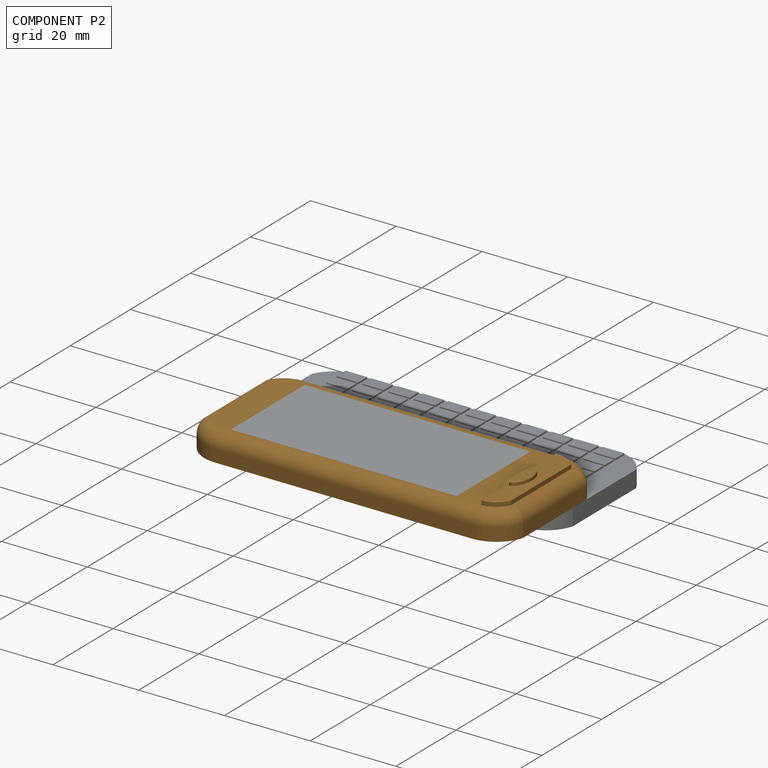
[diagram: component P2 — assembled]
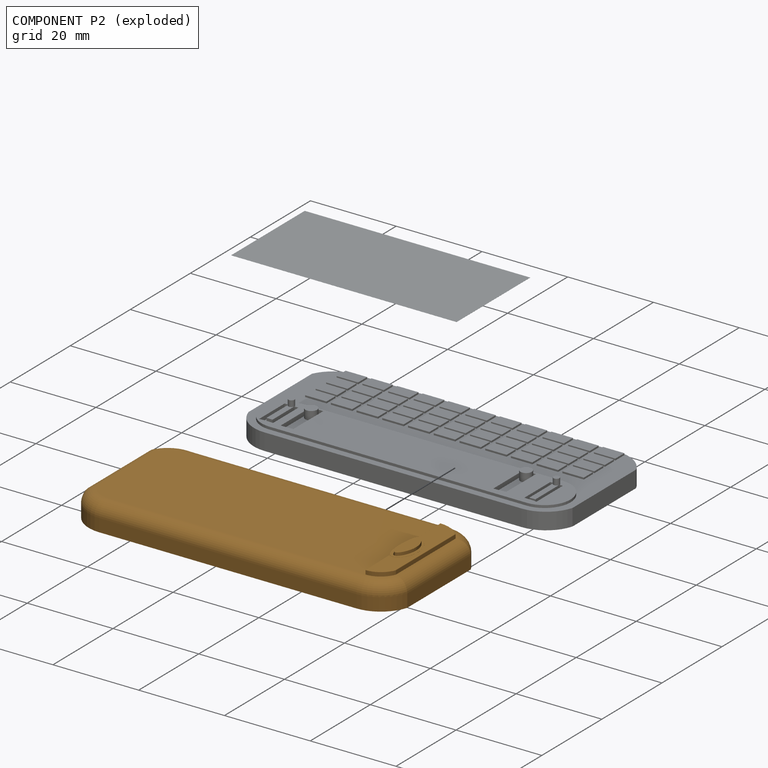
[diagram: component P2 — exploded]
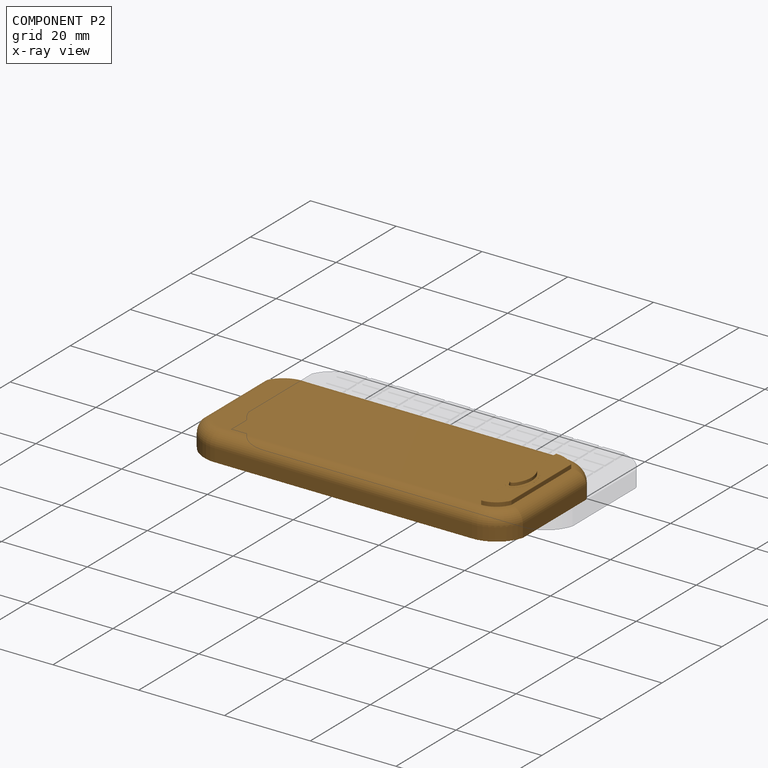
[diagram: component P2 — x-ray view]
COMPONENT P2 — geometry summary (no construction recipe available for this part):
  bounding box: 76.9 x 32.9 x 7.7 mm
  B-rep topology: 1 solid, 62 faces, 300 edges
  volume: 12341 mm^3 (63% of its bounding box)
Held by: FASTENED mate "Fastened 1" to P0; SLIDER mate "Slider 1" to P1.
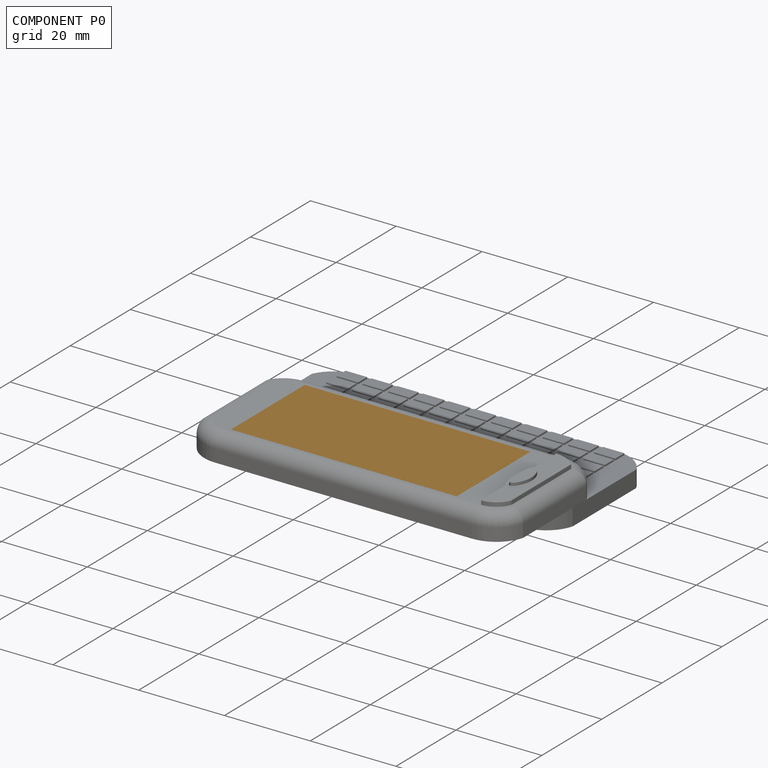
[diagram: component P0 — assembled]
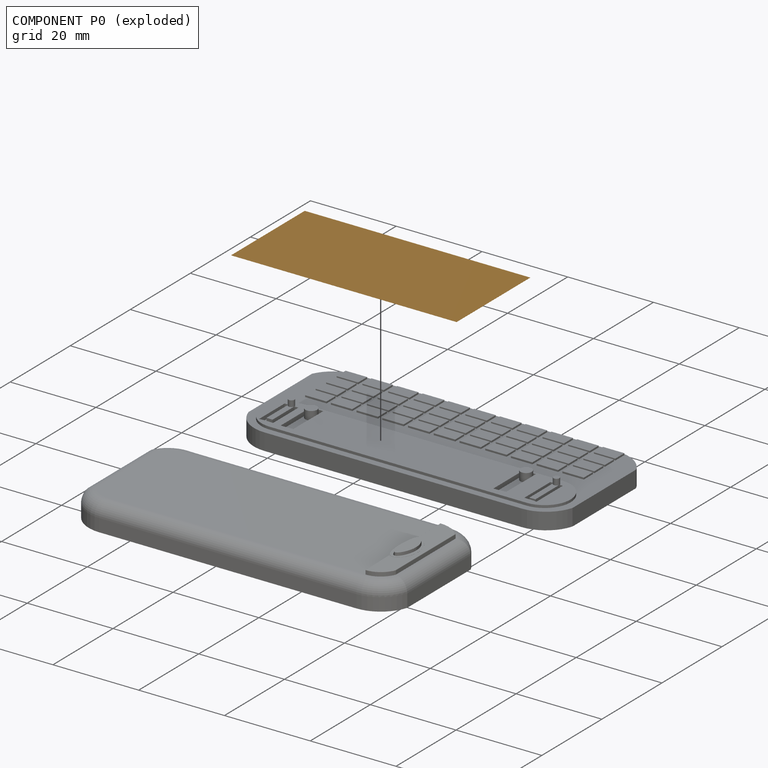
[diagram: component P0 — exploded]
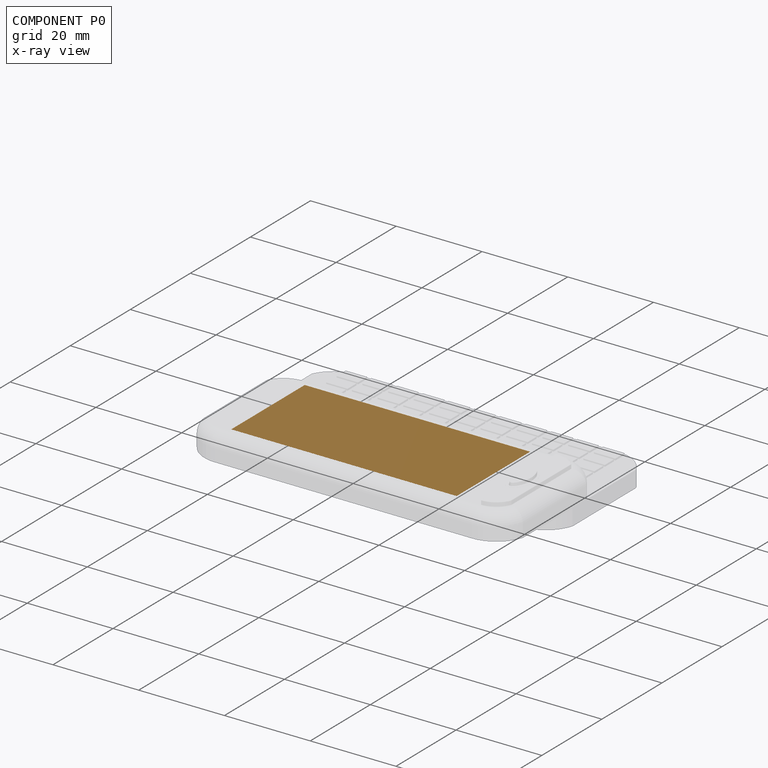
[diagram: component P0 — x-ray view]
COMPONENT P0 — geometry summary (no construction recipe available for this part):
  bounding box: 52.6 x 24.5 x 0.0 mm
  B-rep topology: 1 solid, 6 faces, 24 edges
  volume: 13 mm^3 (100% of its bounding box)
  symmetry: 2-fold rotationally symmetric about the x axis; 2-fold rotationally symmetric about the y axis; 2-fold rotationally symmetric about the z axis; mirror-symmetric across its x mid-plane, y mid-plane, z mid-plane
Held by: FASTENED mate "Fastened 1" to P2.
PROVENANCE & LICENSES
Assembly (occurrences, transforms, mates, per-part STEP geometry): AutoMate dataset, Zenodo record 7776208, CC0.
Construction recipes: CADFS (HuggingFace VladPyatov/CADFS, CC-BY-4.0, layered over the ABC dataset), FeatureScript reconstruction programs keyed by ABC model id.
Join: ABC meta listings map ABC model id -> Onshape documentId; within a shared document, parts are matched by geometric signature (bounding-box dims + volume at 0.1% relative tolerance, exact B-rep face/solid counts).
Verification: 1 of this assembly's 3 components carries a recipe attachment, and every attachment is mesh-verified: the CADFS STEP and the AutoMate member STEP were compared as meshes in their shared local frame (symmetric sampled-point-to-mesh distance); worst across the 1 attachment: below the mesh-comparison resolution (tessellation chordal tolerance ~0.123 mm) on a 82 mm part.
Renders: orthographic iso camera (az 35 / el 25); the floor grid conveys scale (grid pitch printed in each image; no ruler). In the exploded view each component is displaced by its stored offset vector: the offsets alone carry the explosion direction (mate normal/axis signs are not orientation cues and do not encode it), and separation distances are assigned per mate-chain, not proportionally to assembly-order depth.
